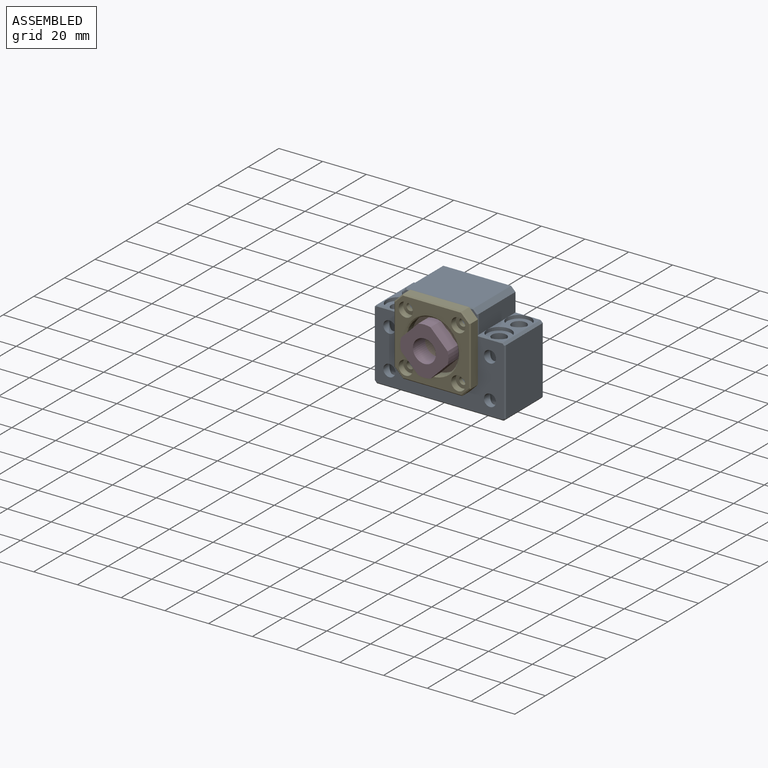
[diagram: assembled view]
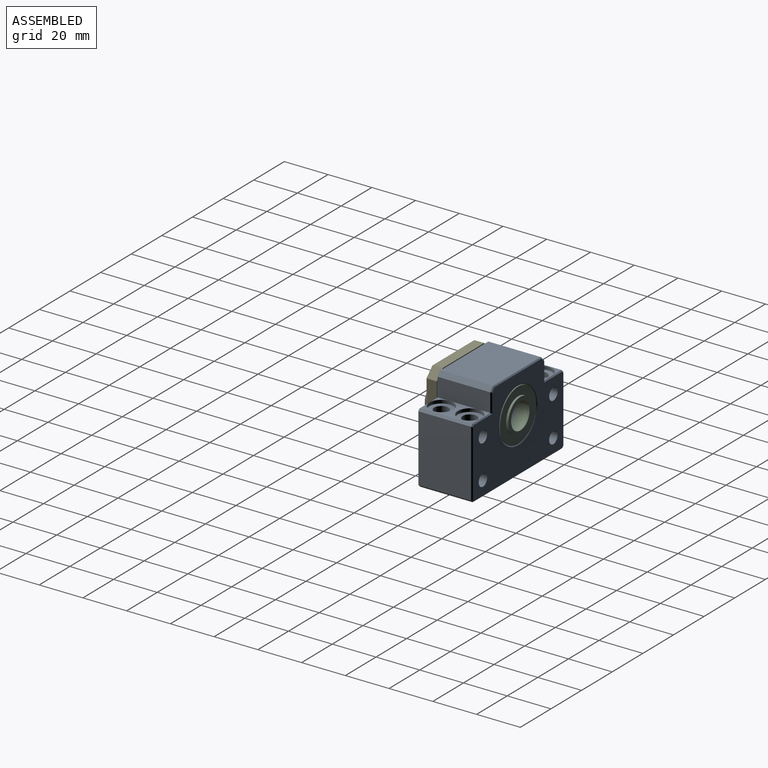
[diagram: assembled view, second angle]
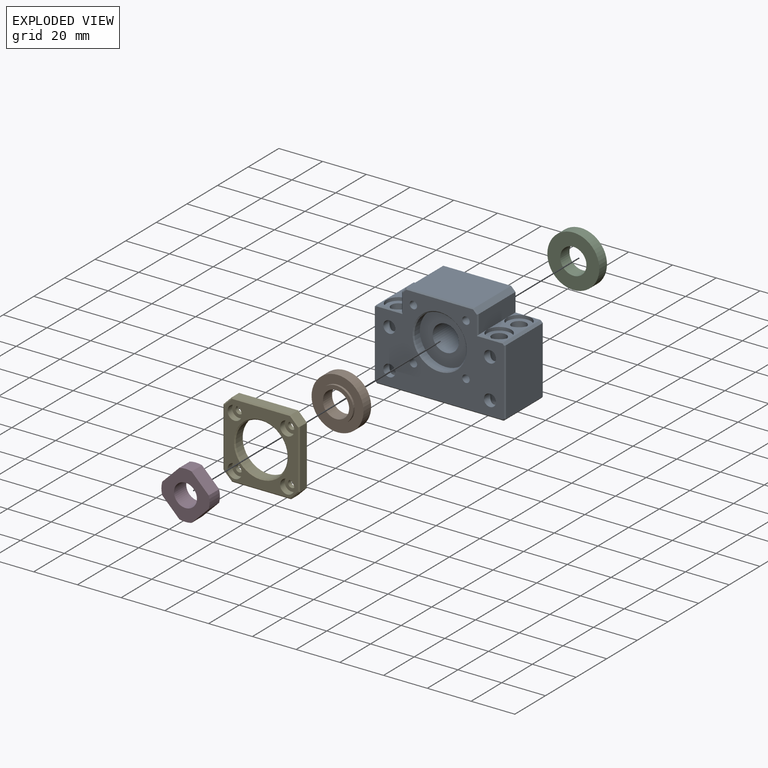
[diagram: exploded view]
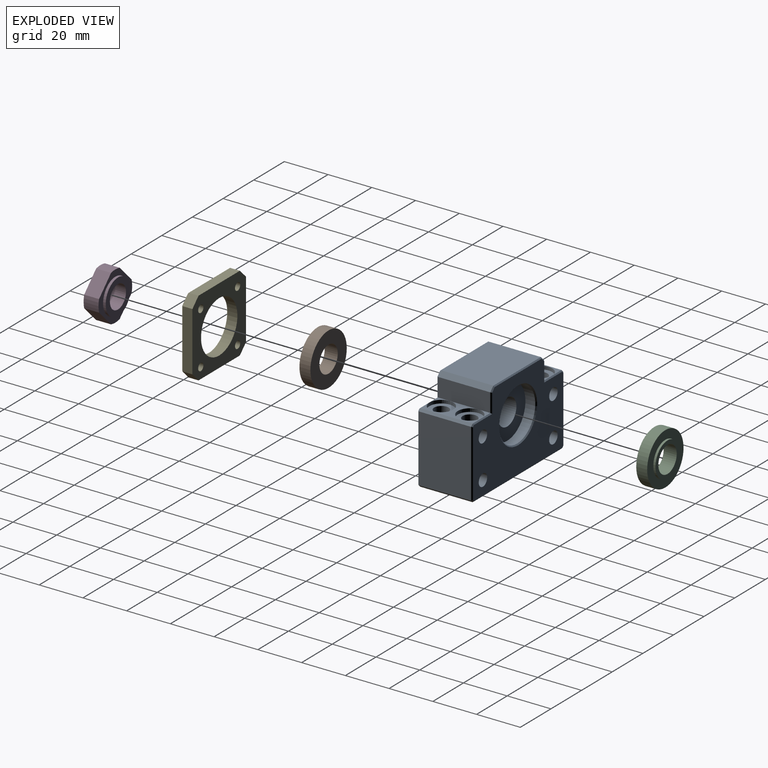
[diagram: exploded view, second angle]
ASSEMBLY  parts=5 mates=4
PART A: 87 faces, bbox 60x25x43 mm
  f0: cylinder r=3.3mm len=31mm, axis (0,0,1), area 535.9mm2, adj f11,f63,f73,f75,f77,f78
  f1: cylinder r=3.3mm len=31mm, axis (0,0,1), area 535.9mm2, adj f11,f65,f73,f74,f76,f78
  f2: cylinder r=3.3mm len=31mm, axis (0,0,1), area 535.9mm2, adj f11,f59,f68,f69,f70,f72
  f3: cylinder r=3.3mm len=31mm, axis (0,0,1), area 535.9mm2, adj f11,f61,f67,f68,f71,f72
  f4: plane 5.5x5.5mm, normal (0,0,1), area 6.5mm2, adj f16,f33,f66
  f5: plane 5.5x5.5mm, normal (0,0,1), area 6.5mm2, adj f16,f48,f64
  f6: plane 24x11.5mm, normal (0,0,1), area 73mm2, adj f14,f25,f40,f55,f60,f62
  f7: plane 5.5x5.5mm, normal (0,0,1), area 6.5mm2, adj f14,f40,f60
  f8: cylinder r=11.88mm len=23.75mm, axis (0,1,0), area 335.8mm2, adj f22,f43
  f9: plane 24x11.5mm, normal (0,0,1), area 73mm2, adj f16,f26,f33,f48,f64,f66
  f10: plane 30.5x24mm, normal (1,0,0), area 732mm2, adj f24,f26,f29,f44
  f11: plane 58x24mm, normal (0,0,-1), area 1255.2mm2, adj f0,f1,f2,f3,f23,f24,f32,f47
  f12: plane 30.5x24mm, normal (-1,0,0), area 732mm2, adj f23,f25,f36,f51
  f13: plane 5.5x5.5mm, normal (0,0,1), area 6.5mm2, adj f14,f55,f62
  f14: plane 24x8.5mm, normal (-1,0,0), area 204mm2, adj f6,f7,f13,f27,f42,f57
  f15: plane 31x24mm, normal (0,0,1), area 744mm2, adj f27,f28,f39,f54
  f16: plane 24x8.5mm, normal (1,0,0), area 204mm2, adj f4,f5,f9,f28,f35,f50
  f17: cylinder r=11.88mm len=23.75mm, axis (0,1,0), area 261.1mm2, adj f21,f58
  f18: plane 59x42mm, normal (0,-1,0), area 1599.1mm2, adj f44,f45,f46,f47,f48,f49,f50,f51
  f19: plane 59x42mm, normal (0,1,0), area 1635.4mm2, adj f29,f30,f31,f32,f33,f34,f35,f36
  f20: cylinder r=6mm len=16mm, axis (0,1,0), area 603.2mm2, adj f21,f22
  f21: plane 23.75x23.75mm, normal (0,-1,0), area 329.9mm2, adj f17,f20
  f22: plane 23.75x23.75mm, normal (0,1,0), area 329.9mm2, adj f8,f20
  f23: plane 24x1mm, normal (-0.71,0,-0.71), area 33.9mm2, adj f11,f12,f34,f49
  f24: plane 24x1mm, normal (0.71,0,-0.71), area 33.9mm2, adj f10,f11,f30,f45
  f25: plane 24x1mm, normal (-0.71,0,0.71), area 33.9mm2, adj f6,f12,f38,f53
  f26: plane 24x1mm, normal (0.71,0,0.71), area 33.9mm2, adj f9,f10,f31,f46
  f27: plane 24x2mm, normal (-0.71,0,0.71), area 67.9mm2, adj f14,f15,f41,f56
  f28: plane 24x2mm, normal (0.71,0,0.71), area 67.9mm2, adj f15,f16,f37,f52
  f29: plane 30.5x0.5mm, normal (0.71,0.71,0), area 21.4mm2, adj f10,f19,f30,f31
  f30: plane 1.21x1.21mm, normal (0.5,0.71,-0.5), area 0.9mm2, adj f19,f24,f29,f32
  f31: plane 1.21x1.21mm, normal (0.5,0.71,0.5), area 0.9mm2, adj f19,f26,f29,f33
  f32: plane 58x0.5mm, normal (0,0.71,-0.71), area 40.9mm2, adj f11,f19,f30,f34
  f33: plane 12x0.5mm, normal (0,0.71,0.71), area 8.2mm2, adj f4,f9,f19,f31,f35
  f34: plane 1.21x1.21mm, normal (-0.5,0.71,-0.5), area 0.9mm2, adj f19,f23,f32,f36
  f35: plane 9x0.5mm, normal (0.71,0.71,0), area 6.1mm2, adj f16,f19,f33,f37
  f36: plane 30.5x0.5mm, normal (-0.71,0.71,0), area 21.4mm2, adj f12,f19,f34,f38
  f37: plane 2.21x2.21mm, normal (0.5,0.71,0.5), area 1.9mm2, adj f19,f28,f35,f39
  f38: plane 1.21x1.21mm, normal (-0.5,0.71,0.5), area 0.9mm2, adj f19,f25,f36,f40
  f39: plane 31x0.5mm, normal (0,0.71,0.71), area 21.8mm2, adj f15,f19,f37,f41
  f40: plane 12x0.5mm, normal (0,0.71,0.71), area 8.2mm2, adj f6,f7,f19,f38,f42
  f41: plane 2.21x2.21mm, normal (-0.5,0.71,0.5), area 1.9mm2, adj f19,f27,f39,f42
  f42: plane 9x0.5mm, normal (-0.71,0.71,0), area 6.1mm2, adj f14,f19,f40,f41
  f43: cone r=12.38mm half-angle=45deg, axis (0,1,0), area 53.9mm2, adj f8,f19
  f44: plane 30.5x0.5mm, normal (0.71,-0.71,0), area 21.4mm2, adj f10,f18,f45,f46
  f45: plane 1.21x1.21mm, normal (0.5,-0.71,-0.5), area 0.9mm2, adj f18,f24,f44,f47
  f46: plane 1.21x1.21mm, normal (0.5,-0.71,0.5), area 0.9mm2, adj f18,f26,f44,f48
  f47: plane 58x0.5mm, normal (0,-0.71,-0.71), area 40.9mm2, adj f11,f18,f45,f49
  f48: plane 12x0.5mm, normal (0,-0.71,0.71), area 8.2mm2, adj f5,f9,f18,f46,f50
  f49: plane 1.21x1.21mm, normal (-0.5,-0.71,-0.5), area 0.9mm2, adj f18,f23,f47,f51
  f50: plane 9x0.5mm, normal (0.71,-0.71,0), area 6.1mm2, adj f16,f18,f48,f52
  f51: plane 30.5x0.5mm, normal (-0.71,-0.71,0), area 21.4mm2, adj f12,f18,f49,f53
  f52: plane 2.21x2.21mm, normal (0.5,-0.71,0.5), area 1.9mm2, adj f18,f28,f50,f54
  f53: plane 1.21x1.21mm, normal (-0.5,-0.71,0.5), area 0.9mm2, adj f18,f25,f51,f55
  f54: plane 31x0.5mm, normal (0,-0.71,0.71), area 21.8mm2, adj f15,f18,f52,f56
  f55: plane 12x0.5mm, normal (0,-0.71,0.71), area 8.2mm2, adj f6,f13,f18,f53,f57
  f56: plane 2.21x2.21mm, normal (-0.5,-0.71,0.5), area 1.9mm2, adj f18,f27,f54,f57
  f57: plane 9x0.5mm, normal (-0.71,-0.71,0), area 6.1mm2, adj f14,f18,f55,f56
  f58: cone r=11.88mm half-angle=45deg, axis (0,-1,0), area 53.9mm2, adj f17,f18
  f59: plane 11x11mm, normal (0,0,1), area 60.8mm2, adj f2,f60
  f60: cylinder r=5.5mm len=11mm, axis (0,0,1), area 51.8mm2, adj f6,f7,f59
  f61: plane 11x11mm, normal (0,0,1), area 60.8mm2, adj f3,f62
  f62: cylinder r=5.5mm len=11mm, axis (0,0,1), area 51.8mm2, adj f6,f13,f61
  f63: plane 11x11mm, normal (0,0,1), area 60.8mm2, adj f0,f64
  f64: cylinder r=5.5mm len=11mm, axis (0,0,1), area 51.8mm2, adj f5,f9,f63
  f65: plane 11x11mm, normal (0,0,1), area 60.8mm2, adj f1,f66
  f66: cylinder r=5.5mm len=11mm, axis (0,0,1), area 51.8mm2, adj f4,f9,f65
  f67: cylinder r=2.75mm len=5.5mm, axis (0,-1,0), area 58.5mm2, adj f3,f18
  f68: cylinder r=2.75mm len=9.35mm, axis (0,-1,0), area 134.2mm2, adj f2,f3
  f69: cylinder r=2.75mm len=5.5mm, axis (0,-1,0), area 58.5mm2, adj f2,f19
  f70: cylinder r=2.75mm len=5.5mm, axis (0,-1,0), area 58.5mm2, adj f2,f19
  f71: cylinder r=2.75mm len=5.5mm, axis (0,-1,0), area 58.5mm2, adj f3,f18
  f72: cylinder r=2.75mm len=9.35mm, axis (0,-1,0), area 134.2mm2, adj f2,f3
  f73: cylinder r=2.75mm len=9.35mm, axis (0,-1,0), area 134.2mm2, adj f0,f1
  f74: cylinder r=2.75mm len=5.5mm, axis (0,-1,0), area 58.5mm2, adj f1,f19
  f75: cylinder r=2.75mm len=5.5mm, axis (0,-1,0), area 58.5mm2, adj f0,f18
  f76: cylinder r=2.75mm len=5.5mm, axis (0,-1,0), area 58.5mm2, adj f1,f19
  f77: cylinder r=2.75mm len=5.5mm, axis (0,-1,0), area 58.5mm2, adj f0,f18
  f78: cylinder r=2.75mm len=9.35mm, axis (0,-1,0), area 134.2mm2, adj f0,f1
  f79: cylinder r=1.7mm len=10mm, axis (0,-1,0), area 106.8mm2, adj f18,f80
  f80: cone r=0mm half-angle=59deg, axis (0,-1,0), area 10.6mm2, adj f79
  f81: cylinder r=1.7mm len=10mm, axis (0,-1,0), area 106.8mm2, adj f18,f82
  f82: cone r=0mm half-angle=59deg, axis (0,-1,0), area 10.6mm2, adj f81
  f83: cylinder r=1.7mm len=10mm, axis (0,-1,0), area 106.8mm2, adj f18,f84
  f84: cone r=0mm half-angle=59deg, axis (0,-1,0), area 10.6mm2, adj f83
  f85: cylinder r=1.7mm len=10mm, axis (0,-1,0), area 106.8mm2, adj f18,f86
  f86: cone r=0mm half-angle=59deg, axis (0,-1,0), area 10.6mm2, adj f85
PART B: 6 faces, bbox 23.8x6x23.8 mm
  f0: cylinder r=7.88mm len=15.75mm, axis (0,1,0), area 49.5mm2, adj f3,f4
  f1: cylinder r=6mm len=12mm, axis (0,1,0), area 226.2mm2, adj f2,f3
  f2: plane 23.75x23.75mm, normal (0,-1,0), area 329.9mm2, adj f1,f5
  f3: plane 15.75x15.75mm, normal (0,1,0), area 81.7mm2, adj f0,f1
  f4: plane 23.75x23.75mm, normal (0,1,0), area 248.2mm2, adj f0,f5
  f5: cylinder r=11.88mm len=23.75mm, axis (0,-1,0), area 373.1mm2, adj f2,f4
PART C: same geometry as B
PART D: 13 faces, bbox 22x8x22 mm
  f0: cylinder r=8mm len=16mm, axis (0,1,0), area 60.3mm2, adj f3,f4
  f1: cylinder r=5.25mm len=10.5mm, axis (0,1,0), area 263.9mm2, adj f2,f3
  f2: plane 22x22mm, normal (0,-1,0), area 248.5mm2, adj f1,f5,f6,f7,f8,f9,f10,f11
  f3: plane 16x16mm, normal (0,1,0), area 114.5mm2, adj f0,f1
  f4: plane 22x22mm, normal (0,1,0), area 134.1mm2, adj f0,f5,f6,f7,f8,f9,f10,f11
  f5: plane 7.84x7.84mm, normal (-0.71,0,-0.71), area 75.4mm2, adj f2,f4,f6,f12
  f6: cylinder r=11mm len=6.8mm, axis (0,-1,0), area 38.5mm2, adj f2,f4,f5,f7
  f7: plane 7.84x7.84mm, normal (0.71,0,-0.71), area 75.4mm2, adj f2,f4,f6,f8
  f8: cylinder r=11mm len=6.8mm, axis (0,-1,0), area 38.5mm2, adj f2,f4,f7,f9
  f9: plane 7.84x7.84mm, normal (0.71,0,0.71), area 75.4mm2, adj f2,f4,f8,f10
  f10: cylinder r=11mm len=6.8mm, axis (0,-1,0), area 38.5mm2, adj f2,f4,f9,f11
  f11: plane 7.84x7.84mm, normal (-0.71,0,0.71), area 75.4mm2, adj f2,f4,f10,f12
  f12: cylinder r=11mm len=6.8mm, axis (0,-1,0), area 38.5mm2, adj f2,f4,f5,f11
PART E: 32 faces, bbox 35x5x35 mm
  f0: plane 27x4.5mm, normal (-1,0,0), area 121.5mm2, adj f6,f7,f9,f11
  f1: plane 27x4.5mm, normal (0,0,-1), area 121.5mm2, adj f6,f7,f8,f15
  f2: plane 27x4.5mm, normal (1,0,0), area 121.5mm2, adj f6,f8,f10,f18
  f3: cylinder r=11.88mm len=23.75mm, axis (0,1,0), area 335.8mm2, adj f6,f19
  f4: plane 27x4.5mm, normal (0,0,1), area 121.5mm2, adj f6,f9,f10,f14
  f5: plane 34x34mm, normal (0,-1,0), area 514.7mm2, adj f11,f12,f13,f14,f15,f16,f17,f18
  f6: plane 35x35mm, normal (0,1,0), area 713.7mm2, adj f0,f1,f2,f3,f4,f7,f8,f9
  f7: plane 4.5x4mm, normal (-0.71,0,-0.71), area 25.5mm2, adj f0,f1,f6,f13
  f8: plane 4.5x4mm, normal (0.71,0,-0.71), area 25.5mm2, adj f1,f2,f6,f17
  f9: plane 4.5x4mm, normal (-0.71,0,0.71), area 25.5mm2, adj f0,f4,f6,f12
  f10: plane 4.5x4mm, normal (0.71,0,0.71), area 25.5mm2, adj f2,f4,f6,f16
  f11: plane 27x0.5mm, normal (-0.71,-0.71,0), area 18.9mm2, adj f0,f5,f12,f13
  f12: plane 4.21x4.21mm, normal (-0.5,-0.71,0.5), area 3.9mm2, adj f5,f9,f11,f14
  f13: plane 4.21x4.21mm, normal (-0.5,-0.71,-0.5), area 3.9mm2, adj f5,f7,f11,f15
  f14: plane 27x0.5mm, normal (0,-0.71,0.71), area 18.9mm2, adj f4,f5,f12,f16
  f15: plane 27x0.5mm, normal (0,-0.71,-0.71), area 18.9mm2, adj f1,f5,f13,f17
  f16: plane 4.21x4.21mm, normal (0.5,-0.71,0.5), area 3.9mm2, adj f5,f10,f14,f18
  f17: plane 4.21x4.21mm, normal (0.5,-0.71,-0.5), area 3.9mm2, adj f5,f8,f15,f18
  f18: plane 27x0.5mm, normal (0.71,-0.71,0), area 18.9mm2, adj f2,f5,f16,f17
  f19: cone r=11.88mm half-angle=45deg, axis (0,-1,0), area 53.9mm2, adj f3,f5
  f20: cylinder r=1.7mm len=3.4mm, axis (0,-1,0), area 21.4mm2, adj f6,f21
  f21: plane 6.5x6.5mm, normal (0,-1,0), area 24.1mm2, adj f20,f22
  f22: cylinder r=3.25mm len=6.5mm, axis (0,-1,0), area 61.3mm2, adj f5,f21
  f23: cylinder r=1.7mm len=3.4mm, axis (0,-1,0), area 21.4mm2, adj f6,f24
  f24: plane 6.5x6.5mm, normal (0,-1,0), area 24.1mm2, adj f23,f25
  f25: cylinder r=3.25mm len=6.5mm, axis (0,-1,0), area 61.3mm2, adj f5,f24
  f26: cylinder r=1.7mm len=3.4mm, axis (0,-1,0), area 21.4mm2, adj f6,f27
  f27: plane 6.5x6.5mm, normal (0,-1,0), area 24.1mm2, adj f26,f28
  f28: cylinder r=3.25mm len=6.5mm, axis (0,-1,0), area 61.3mm2, adj f5,f27
  f29: cylinder r=1.7mm len=3.4mm, axis (0,-1,0), area 21.4mm2, adj f6,f30
  f30: plane 6.5x6.5mm, normal (0,-1,0), area 24.1mm2, adj f29,f31
  f31: cylinder r=3.25mm len=6.5mm, axis (0,-1,0), area 61.3mm2, adj f5,f30
PLACE A at identity fixed
PLACE B rot(axis=(1,0,0),180deg) t=(0,-120,0)mm
PLACE C at identity
PLACE D at identity
PLACE E at identity
MATE fastened A.f8 <-> C.f5  axis (0,1,0) through (0,-52,0)mm
MATE fastened E.f23 <-> A.f81  axis (0,1,0) through (-12.02,-72,12.02)mm
MATE fastened B.f5 <-> A.f8  axis (0,1,0) through (0,-68,0)mm
MATE fastened D.f1 <-> B.f1  axis (0,1,0) through (0,-74,0)mm
